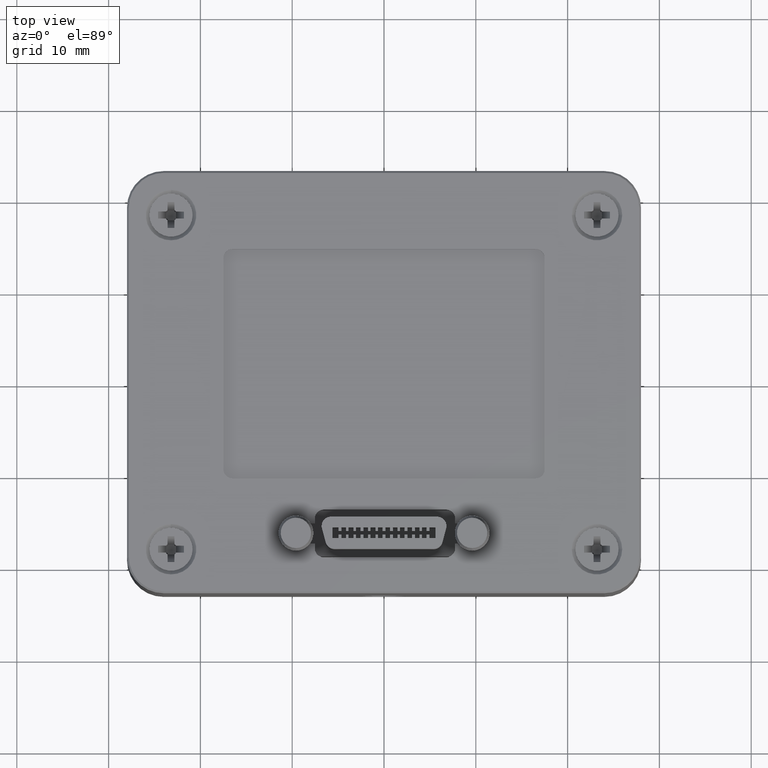
[diagram: clean part render]
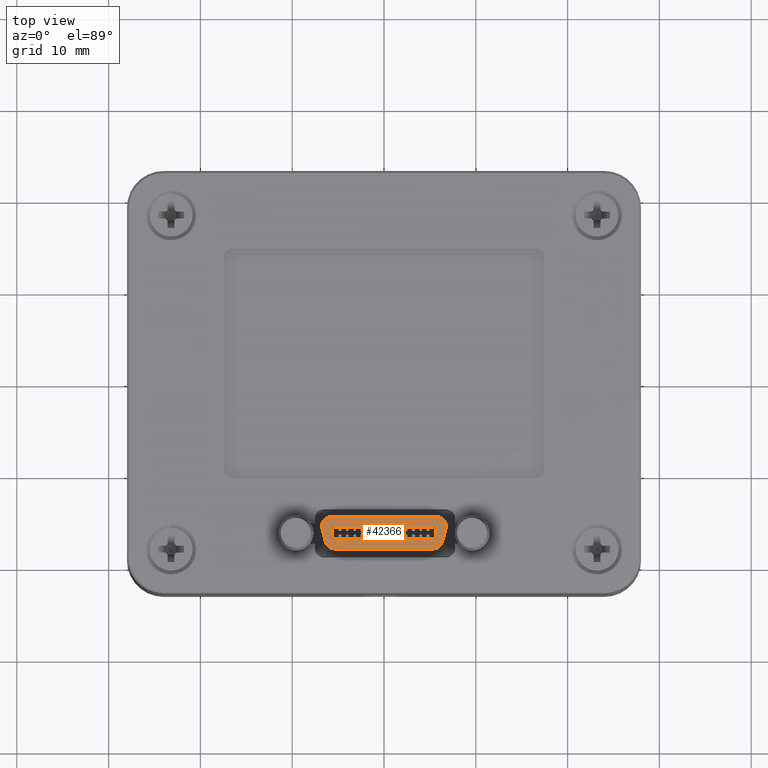
[diagram: same view with one face highlighted and labeled with its STEP entity id]
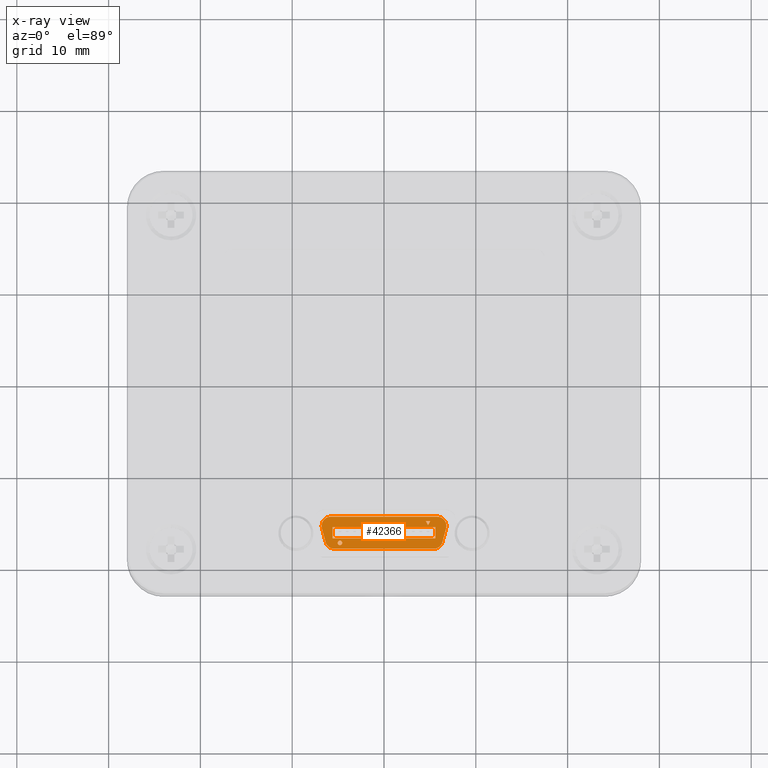
[diagram: x-ray of the same camera — body ghosted, the highlighted face saturated]
A machine part, top view. The second image highlights one B-rep face of the part: STEP entity #42366.
The next image is the same camera in x-ray: the body ghosted, the highlighted face saturated — about 0% of this face is hidden behind the body in this view.
In plain terms, the highlighted planar face has unit normal (-0, -0.0003, 1).
Its self-contained STEP definition (entity closure, byte-faithful):
#111 = DIRECTION ( 'NONE',  ( -2.220441045274704500E-016, -0.9999999390765166300, -0.0003490658433100037200 ) ) ;
#1056 = CARTESIAN_POINT ( 'NONE',  ( -4.800102880000011400, -17.35476037772190900, 33.11010463719154000 ) ) ;
#1599 = EDGE_CURVE ( 'NONE', #23203, #103197, #16651, .T. ) ;
#1652 = EDGE_CURVE ( 'NONE', #87823, #50359, #20431, .T. ) ;
#3586 = AXIS2_PLACEMENT_3D ( 'NONE', #77244, #28074, #85491 ) ;
#3914 = EDGE_CURVE ( 'NONE', #23203, #39838, #104231, .T. ) ;
#3979 = VERTEX_POINT ( 'NONE', #21876 ) ;
#4353 = CARTESIAN_POINT ( 'NONE',  ( -13.59903205495301400, -17.10476039295272000, 33.11019190448217800 ) ) ;
#5296 = VERTEX_POINT ( 'NONE', #46645 ) ;
#5738 = CARTESIAN_POINT ( 'NONE',  ( -5.600102880000011200, -17.10476039295272000, 33.11019190448217800 ) ) ;
#6071 = VERTEX_POINT ( 'NONE', #75220 ) ;
#6190 = AXIS2_PLACEMENT_3D ( 'NONE', #73770, #24551, #81944 ) ;
#7318 = CARTESIAN_POINT ( 'NONE',  ( 6.162937263318991800, -18.26357936745632700, 33.10978740004574000 ) ) ;
#7558 = AXIS2_PLACEMENT_3D ( 'NONE', #89889, #40687, #98162 ) ;
#9490 = EDGE_LOOP ( 'NONE', ( #79410, #44781, #24299, #65651 ) ) ;
#9494 = VERTEX_POINT ( 'NONE', #80011 ) ;
#9993 = VERTEX_POINT ( 'NONE', #62412 ) ;
#10546 = LINE ( 'NONE', #102519, #51692 ) ;
#10887 = FACE_BOUND ( 'NONE', #93804, .T. ) ;
#11819 = ORIENTED_EDGE ( 'NONE', *, *, #66665, .T. ) ;
#13460 = FACE_OUTER_BOUND ( 'NONE', #75778, .T. ) ;
#15276 = PLANE ( 'NONE',  #99686 ) ;
#16651 = LINE ( 'NONE', #4353, #101475 ) ;
#16831 = EDGE_CURVE ( 'NONE', #9993, #6071, #85092, .T. ) ;
#17425 = DIRECTION ( 'NONE',  ( 7.800644048618630100E-020, 0.0003490658433100036600, -0.9999999390765167400 ) ) ;
#18640 = CARTESIAN_POINT ( 'NONE',  ( 5.799897119999990900, -14.75476053612278100, 33.11101220885240800 ) ) ;
#18938 = EDGE_CURVE ( 'NONE', #3979, #5296, #68858, .T. ) ;
#20431 = LINE ( 'NONE', #46302, #61572 ) ;
#21190 = VERTEX_POINT ( 'NONE', #98318 ) ;
#21876 = CARTESIAN_POINT ( 'NONE',  ( -6.766028706289022300, -16.01357950453401800, 33.11057279819318200 ) ) ;
#22078 = CIRCLE ( 'NONE', #7558, 0.9999999999999991100 ) ;
#23099 = AXIS2_PLACEMENT_3D ( 'NONE', #76681, #27546, #84909 ) ;
#23203 = VERTEX_POINT ( 'NONE', #65825 ) ;
#24299 = ORIENTED_EDGE ( 'NONE', *, *, #82746, .F. ) ;
#24551 = DIRECTION ( 'NONE',  ( 7.800644048618630100E-020, 0.0003490658433100036600, -0.9999999390765167400 ) ) ;
#27498 = ORIENTED_EDGE ( 'NONE', *, *, #72026, .F. ) ;
#27546 = DIRECTION ( 'NONE',  ( -7.800644048618630100E-020, -0.0003490658433100036600, 0.9999999390765167400 ) ) ;
#28074 = DIRECTION ( 'NONE',  ( 7.800644048618630100E-020, 0.0003490658433100036600, -0.9999999390765167400 ) ) ;
#28905 = DIRECTION ( 'NONE',  ( -2.220441045274704500E-016, -0.9999999390765166300, -0.0003490658433100037200 ) ) ;
#30514 = VECTOR ( 'NONE', #70962, 1000.000000000000000 ) ;
#32088 = DIRECTION ( 'NONE',  ( -0.2588190451029853100, -0.9659257674413778100, -0.0003371717131284623600 ) ) ;
#32728 = FACE_BOUND ( 'NONE', #72089, .T. ) ;
#32912 = CARTESIAN_POINT ( 'NONE',  ( -13.59903205495301400, -15.22174780578041200, 33.11084919989892900 ) ) ;
#37480 = DIRECTION ( 'NONE',  ( -1.000000000000000000, 5.750802595966656700E-017, -5.793235643692266200E-020 ) ) ;
#37765 = LINE ( 'NONE', #41501, #81423 ) ;
#38830 = EDGE_CURVE ( 'NONE', #97808, #21190, #51251, .T. ) ;
#39838 = VERTEX_POINT ( 'NONE', #51956 ) ;
#40664 = EDGE_CURVE ( 'NONE', #74505, #39838, #77422, .T. ) ;
#40687 = DIRECTION ( 'NONE',  ( 7.800644048618630100E-020, 0.0003490658433100036600, -0.9999999390765167400 ) ) ;
#41443 = VECTOR ( 'NONE', #32088, 1000.000000000000100 ) ;
#41501 = CARTESIAN_POINT ( 'NONE',  ( 4.799897119999990000, -15.65476048129177400, 33.11069804995497600 ) ) ;
#41989 = LINE ( 'NONE', #93383, #61255 ) ;
#42366 = ADVANCED_FACE ( 'NONE', ( #13460, #76382, #10887, #32728 ), #15276, .T. ) ;
#44440 = CARTESIAN_POINT ( 'NONE',  ( -6.364104917641761900, -17.51357941314875800, 33.11004919952463200 ) ) ;
#44781 = ORIENTED_EDGE ( 'NONE', *, *, #1599, .T. ) ;
#45610 = ORIENTED_EDGE ( 'NONE', *, *, #47417, .T. ) ;
#45667 = CARTESIAN_POINT ( 'NONE',  ( 5.397973331352990700, -17.25476038381406600, 33.11013954422005400 ) ) ;
#46010 = CARTESIAN_POINT ( 'NONE',  ( 5.049897119999990000, -15.22174780578041500, 33.11084919989892900 ) ) ;
#46302 = CARTESIAN_POINT ( 'NONE',  ( 5.049897119999990000, -15.22174780578041500, 33.11084919989892900 ) ) ;
#46645 = CARTESIAN_POINT ( 'NONE',  ( -5.800102880000010500, -14.75476053612278800, 33.11101220887648800 ) ) ;
#47274 = CARTESIAN_POINT ( 'NONE',  ( 4.549897119999990000, -15.22174780578041500, 33.11084919989892900 ) ) ;
#47417 = EDGE_CURVE ( 'NONE', #89091, #87823, #73125, .T. ) ;
#48258 = EDGE_CURVE ( 'NONE', #9494, #6071, #65137, .T. ) ;
#49395 = DIRECTION ( 'NONE',  ( -7.800644048618632600E-020, -0.0003490658433100037700, 0.9999999390765167400 ) ) ;
#49825 = ORIENTED_EDGE ( 'NONE', *, *, #1652, .T. ) ;
#50359 = VERTEX_POINT ( 'NONE', #95508 ) ;
#51251 = CIRCLE ( 'NONE', #3586, 0.2499999999999989200 ) ;
#51692 = VECTOR ( 'NONE', #28905, 1000.000000000000100 ) ;
#51956 = CARTESIAN_POINT ( 'NONE',  ( 5.599897119999992500, -15.90476046606090100, 33.11061078349416000 ) ) ;
#52298 = VERTEX_POINT ( 'NONE', #18640 ) ;
#53548 = CARTESIAN_POINT ( 'NONE',  ( 5.599897119999992500, -15.30476050261499100, 33.11082022300014000 ) ) ;
#53945 = DIRECTION ( 'NONE',  ( -1.734723475976808700E-015, 0.9999999390765167400, 0.0003490658433066843200 ) ) ;
#54490 = VERTEX_POINT ( 'NONE', #68469 ) ;
#54656 = ORIENTED_EDGE ( 'NONE', *, *, #72568, .T. ) ;
#55716 = CARTESIAN_POINT ( 'NONE',  ( -13.59903205495301400, -15.90476046606089800, 33.11061078349415300 ) ) ;
#60536 = VECTOR ( 'NONE', #103098, 1000.000000000000100 ) ;
#60785 = CARTESIAN_POINT ( 'NONE',  ( -5.600102880000010300, -15.90476046606089800, 33.11061078349416000 ) ) ;
#61255 = VECTOR ( 'NONE', #101622, 1000.000000000000000 ) ;
#61381 = ORIENTED_EDGE ( 'NONE', *, *, #16831, .F. ) ;
#61433 = LINE ( 'NONE', #86672, #105116 ) ;
#61572 = VECTOR ( 'NONE', #95547, 1000.000000000000100 ) ;
#62412 = CARTESIAN_POINT ( 'NONE',  ( 6.765822946289825200, -16.01357950453428800, 33.11057279812087700 ) ) ;
#62588 = EDGE_CURVE ( 'NONE', #9494, #54490, #61433, .T. ) ;
#63080 = CARTESIAN_POINT ( 'NONE',  ( -6.766028706289033000, -16.01357950453412100, 33.11057279848240100 ) ) ;
#64168 = EDGE_CURVE ( 'NONE', #52298, #9993, #22078, .T. ) ;
#65137 = CIRCLE ( 'NONE', #89594, 0.9999999999999991100 ) ;
#65651 = ORIENTED_EDGE ( 'NONE', *, *, #40664, .T. ) ;
#65825 = CARTESIAN_POINT ( 'NONE',  ( 5.599897119999992500, -17.10476039295272300, 33.11019190448217800 ) ) ;
#66569 = CARTESIAN_POINT ( 'NONE',  ( -5.800102880000010500, -15.75476047519928500, 33.11066314298502500 ) ) ;
#66665 = EDGE_CURVE ( 'NONE', #3979, #70124, #93496, .T. ) ;
#68469 = CARTESIAN_POINT ( 'NONE',  ( -5.398179091353010300, -18.25476032289060400, 33.10979047844915600 ) ) ;
#68858 = CIRCLE ( 'NONE', #86530, 0.9999999999999991100 ) ;
#69524 = ORIENTED_EDGE ( 'NONE', *, *, #18938, .F. ) ;
#70124 = VERTEX_POINT ( 'NONE', #44440 ) ;
#70962 = DIRECTION ( 'NONE',  ( 0.2588190451027093100, -0.9659257674414517500, -0.0003371717131284881100 ) ) ;
#71776 = ORIENTED_EDGE ( 'NONE', *, *, #64168, .F. ) ;
#72026 = EDGE_CURVE ( 'NONE', #5296, #52298, #41989, .T. ) ;
#72089 = EDGE_LOOP ( 'NONE', ( #93557, #90321 ) ) ;
#72568 = EDGE_CURVE ( 'NONE', #70124, #54490, #102204, .T. ) ;
#73125 = LINE ( 'NONE', #32912, #94985 ) ;
#73770 = CARTESIAN_POINT ( 'NONE',  ( -4.800102880000011400, -17.60476036249084300, 33.11001737117490500 ) ) ;
#74505 = VERTEX_POINT ( 'NONE', #60785 ) ;
#74855 = DIRECTION ( 'NONE',  ( 0.0000000000000000000, 0.9999999390765167400, 0.0003490658433066843200 ) ) ;
#75220 = CARTESIAN_POINT ( 'NONE',  ( 6.363899157642690000, -17.51357941314903900, 33.11004919938001500 ) ) ;
#75778 = EDGE_LOOP ( 'NONE', ( #86144, #61381, #71776, #27498, #69524, #11819, #54656, #99099 ) ) ;
#76382 = FACE_BOUND ( 'NONE', #9490, .T. ) ;
#76681 = CARTESIAN_POINT ( 'NONE',  ( -5.398179091353010300, -17.25476038381406200, 33.11013954422005400 ) ) ;
#77244 = CARTESIAN_POINT ( 'NONE',  ( -4.800102880000011400, -17.60476036249084300, 33.11001737117490500 ) ) ;
#77422 = LINE ( 'NONE', #55716, #99290 ) ;
#78229 = EDGE_CURVE ( 'NONE', #50359, #89091, #37765, .T. ) ;
#78252 = DIRECTION ( 'NONE',  ( -1.000000000000000000, 2.220441182291540700E-016, -4.984231348661443500E-022 ) ) ;
#79410 = ORIENTED_EDGE ( 'NONE', *, *, #3914, .F. ) ;
#80011 = CARTESIAN_POINT ( 'NONE',  ( 5.397973331352990700, -18.25476032289060400, 33.10979047844915600 ) ) ;
#80502 = ORIENTED_EDGE ( 'NONE', *, *, #78229, .T. ) ;
#81423 = VECTOR ( 'NONE', #98950, 1000.000000000000100 ) ;
#81944 = DIRECTION ( 'NONE',  ( 0.0000000000000000000, -0.9999999390765167400, -0.0003490658433136244100 ) ) ;
#82032 = DIRECTION ( 'NONE',  ( 1.000000000000000000, -2.220441182291540700E-016, 4.984231348661443500E-022 ) ) ;
#82746 = EDGE_CURVE ( 'NONE', #74505, #103197, #10546, .T. ) ;
#84909 = DIRECTION ( 'NONE',  ( -8.673617379884043400E-016, 0.9999999390765167400, 0.0003490658433066843200 ) ) ;
#85092 = LINE ( 'NONE', #7318, #41443 ) ;
#85491 = DIRECTION ( 'NONE',  ( 0.0000000000000000000, -0.9999999390765167400, -0.0003490658433136244100 ) ) ;
#86144 = ORIENTED_EDGE ( 'NONE', *, *, #48258, .T. ) ;
#86530 = AXIS2_PLACEMENT_3D ( 'NONE', #66569, #17425, #74855 ) ;
#86672 = CARTESIAN_POINT ( 'NONE',  ( -10.79625530270701400, -18.25476032289062900, 33.10979047852155300 ) ) ;
#87516 = EDGE_CURVE ( 'NONE', #21190, #97808, #105331, .T. ) ;
#87823 = VERTEX_POINT ( 'NONE', #46010 ) ;
#89091 = VERTEX_POINT ( 'NONE', #47274 ) ;
#89594 = AXIS2_PLACEMENT_3D ( 'NONE', #45667, #103159, #53945 ) ;
#89889 = CARTESIAN_POINT ( 'NONE',  ( 5.799897119999990900, -15.75476047519928900, 33.11066314298502500 ) ) ;
#90321 = ORIENTED_EDGE ( 'NONE', *, *, #38830, .T. ) ;
#93383 = CARTESIAN_POINT ( 'NONE',  ( -11.60010288000001200, -14.75476053612280200, 33.11101220892464200 ) ) ;
#93496 = LINE ( 'NONE', #63080, #30514 ) ;
#93557 = ORIENTED_EDGE ( 'NONE', *, *, #87516, .T. ) ;
#93804 = EDGE_LOOP ( 'NONE', ( #45610, #49825, #80502 ) ) ;
#94985 = VECTOR ( 'NONE', #82032, 1000.000000000000000 ) ;
#95508 = CARTESIAN_POINT ( 'NONE',  ( 4.799897119999990000, -15.65476048129177400, 33.11069804995497600 ) ) ;
#95547 = DIRECTION ( 'NONE',  ( -0.5000000000001907400, -0.8660253510230442300, -0.0003022998878998631300 ) ) ;
#97808 = VERTEX_POINT ( 'NONE', #1056 ) ;
#98162 = DIRECTION ( 'NONE',  ( 0.0000000000000000000, 0.9999999390765167400, 0.0003490658433066843200 ) ) ;
#98318 = CARTESIAN_POINT ( 'NONE',  ( -4.800102880000011400, -17.85476034725933300, 33.10993010424877500 ) ) ;
#98558 = CARTESIAN_POINT ( 'NONE',  ( -13.59903205495301400, -13.00476064273899900, 33.11162307443975500 ) ) ;
#98950 = DIRECTION ( 'NONE',  ( -0.5000000000001904000, 0.8660253510230444500, 0.0003022998878998631300 ) ) ;
#99099 = ORIENTED_EDGE ( 'NONE', *, *, #62588, .F. ) ;
#99290 = VECTOR ( 'NONE', #104876, 1000.000000000000000 ) ;
#99686 = AXIS2_PLACEMENT_3D ( 'NONE', #98558, #49395, #111 ) ;
#101475 = VECTOR ( 'NONE', #78252, 1000.000000000000000 ) ;
#101622 = DIRECTION ( 'NONE',  ( 1.000000000000000000, -2.220441182291540700E-016, 4.984231348661443500E-022 ) ) ;
#102204 = CIRCLE ( 'NONE', #23099, 0.9999999999999991100 ) ;
#102519 = CARTESIAN_POINT ( 'NONE',  ( -5.600102880000012100, -17.70476035639863000, 33.10998246497619100 ) ) ;
#103098 = DIRECTION ( 'NONE',  ( 2.220441045274704500E-016, 0.9999999390765166300, 0.0003490658433100037200 ) ) ;
#103159 = DIRECTION ( 'NONE',  ( -7.800644048618630100E-020, -0.0003490658433100036600, 0.9999999390765167400 ) ) ;
#103197 = VERTEX_POINT ( 'NONE', #5738 ) ;
#104231 = LINE ( 'NONE', #53548, #60536 ) ;
#104876 = DIRECTION ( 'NONE',  ( 1.000000000000000000, -2.220441182291540700E-016, 4.984231348661443500E-022 ) ) ;
#105116 = VECTOR ( 'NONE', #37480, 1000.000000000000000 ) ;
#105331 = CIRCLE ( 'NONE', #6190, 0.2499999999999989200 ) ;